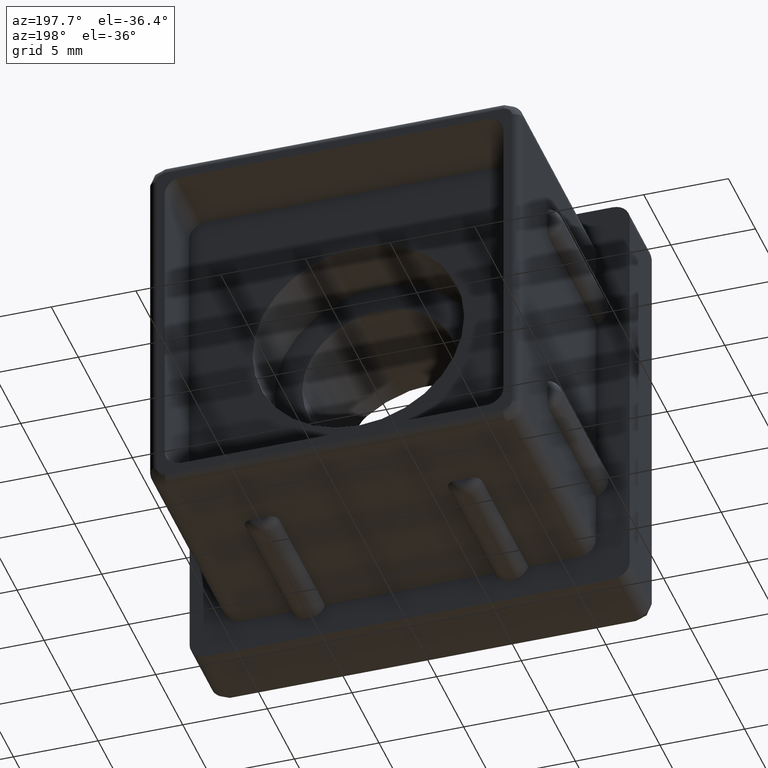
[diagram: clean part render]
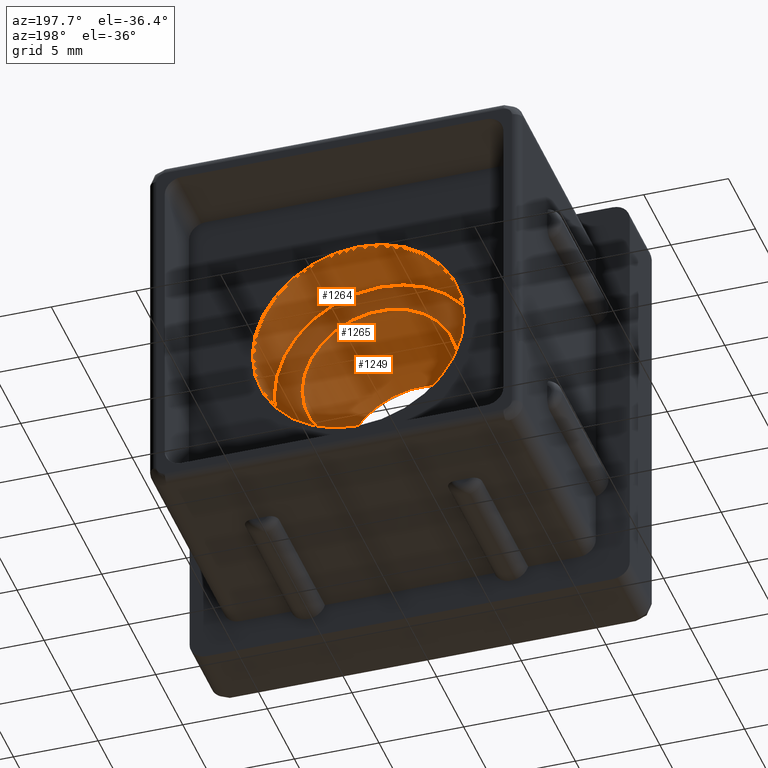
[diagram: same view with one multi-face feature highlighted, each face labeled with its STEP entity id]
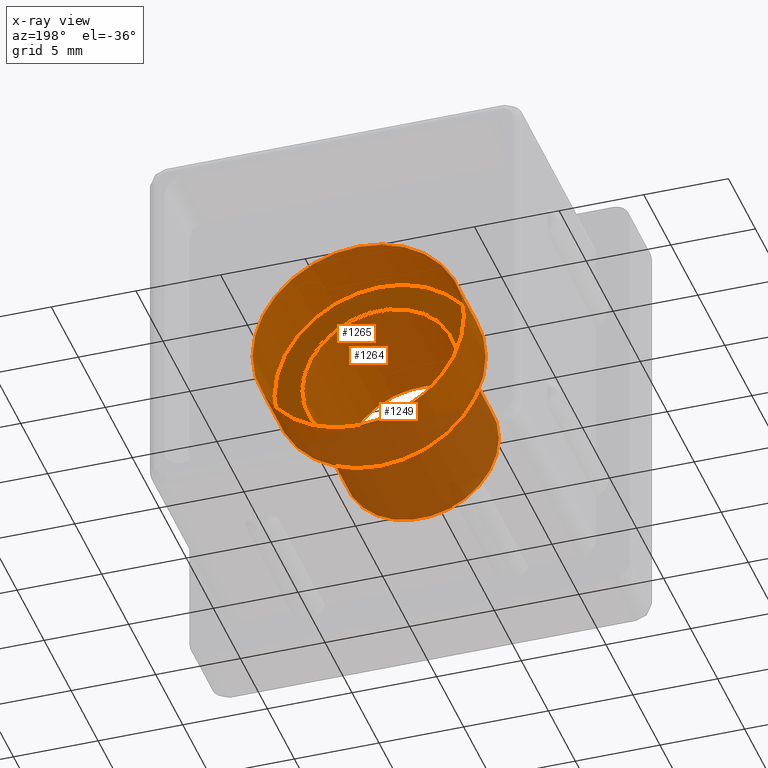
[diagram: x-ray of the same camera — body ghosted, the whole feature saturated]
A machine part, auxiliary view. The highlighted faces form ONE feature: a stepped (counterbored) hole: 2 coaxial cylindrical walls of radii 4.6 -> 6.25 mm joined by 1 annular planar shoulder face(s). The faces share edges in the B-rep.
The next image is the same camera in x-ray: the body ghosted and the whole hole feature saturated, so the bore chain is visible through the body.
Their STEP definitions:
[1] entity #1264 (Cylinder):
#21=FACE_BOUND('',#415,.T.);
#63=CYLINDRICAL_SURFACE('',#1408,6.25);
#335=FACE_OUTER_BOUND('',#414,.T.);
#414=EDGE_LOOP('',(#1167));
#415=EDGE_LOOP('',(#1168));
#501=CIRCLE('',#1409,6.25);
#502=CIRCLE('',#1410,6.25);
#636=VERTEX_POINT('',#2371);
#637=VERTEX_POINT('',#2373);
#819=EDGE_CURVE('',#636,#636,#501,.T.);
#820=EDGE_CURVE('',#637,#637,#502,.T.);
#1167=ORIENTED_EDGE('',*,*,#819,.F.);
#1168=ORIENTED_EDGE('',*,*,#820,.T.);
#1264=ADVANCED_FACE('',(#335,#21),#63,.F.);
#1408=AXIS2_PLACEMENT_3D('',#2370,#1779,#1780);
#1409=AXIS2_PLACEMENT_3D('',#2372,#1781,#1782);
#1410=AXIS2_PLACEMENT_3D('',#2374,#1783,#1784);
#1779=DIRECTION('center_axis',(0.,-1.,0.));
#1780=DIRECTION('ref_axis',(-1.,0.,0.));
#1781=DIRECTION('center_axis',(0.,-1.,0.));
#1782=DIRECTION('ref_axis',(-1.,0.,0.));
#1783=DIRECTION('center_axis',(0.,-1.,0.));
#1784=DIRECTION('ref_axis',(-1.,0.,0.));
#2370=CARTESIAN_POINT('Origin',(0.,14.,0.));
#2371=CARTESIAN_POINT('',(6.25,9.5,7.65404249467096E-16));
#2372=CARTESIAN_POINT('Origin',(0.,9.5,0.));
#2373=CARTESIAN_POINT('',(6.25,5.5,-7.65404249467096E-16));
#2374=CARTESIAN_POINT('Origin',(0.,5.5,0.));
[2] entity #1249 (Cylinder):
#19=FACE_BOUND('',#398,.T.);
#54=CYLINDRICAL_SURFACE('',#1384,4.6);
#320=FACE_OUTER_BOUND('',#397,.T.);
#397=EDGE_LOOP('',(#1081));
#398=EDGE_LOOP('',(#1082));
#491=CIRCLE('',#1383,4.6);
#492=CIRCLE('',#1385,4.6);
#623=VERTEX_POINT('',#2315);
#624=VERTEX_POINT('',#2318);
#792=EDGE_CURVE('',#623,#623,#491,.T.);
#793=EDGE_CURVE('',#624,#624,#492,.T.);
#1081=ORIENTED_EDGE('',*,*,#793,.F.);
#1082=ORIENTED_EDGE('',*,*,#792,.T.);
#1249=ADVANCED_FACE('',(#320,#19),#54,.F.);
#1383=AXIS2_PLACEMENT_3D('',#2316,#1712,#1713);
#1384=AXIS2_PLACEMENT_3D('',#2317,#1714,#1715);
#1385=AXIS2_PLACEMENT_3D('',#2319,#1716,#1717);
#1712=DIRECTION('center_axis',(0.,-1.,0.));
#1713=DIRECTION('ref_axis',(1.,0.,0.));
#1714=DIRECTION('center_axis',(0.,-1.,0.));
#1715=DIRECTION('ref_axis',(1.,0.,0.));
#1716=DIRECTION('center_axis',(0.,-1.,0.));
#1717=DIRECTION('ref_axis',(1.,0.,0.));
#2315=CARTESIAN_POINT('',(4.6,-2.1,0.));
#2316=CARTESIAN_POINT('Origin',(0.,-2.1,0.));
#2317=CARTESIAN_POINT('Origin',(0.,38.6612682020367,0.));
#2318=CARTESIAN_POINT('',(-4.6,5.5,-5.63337527607783E-16));
#2319=CARTESIAN_POINT('Origin',(0.,5.5,0.));
[3] entity #1265 (Plane):
#22=FACE_BOUND('',#417,.T.);
#263=PLANE('',#1411);
#336=FACE_OUTER_BOUND('',#416,.T.);
#416=EDGE_LOOP('',(#1169));
#417=EDGE_LOOP('',(#1170));
#492=CIRCLE('',#1385,4.6);
#502=CIRCLE('',#1410,6.25);
#624=VERTEX_POINT('',#2318);
#637=VERTEX_POINT('',#2373);
#793=EDGE_CURVE('',#624,#624,#492,.T.);
#820=EDGE_CURVE('',#637,#637,#502,.T.);
#1169=ORIENTED_EDGE('',*,*,#820,.F.);
#1170=ORIENTED_EDGE('',*,*,#793,.T.);
#1265=ADVANCED_FACE('',(#336,#22),#263,.T.);
#1385=AXIS2_PLACEMENT_3D('',#2319,#1716,#1717);
#1410=AXIS2_PLACEMENT_3D('',#2374,#1783,#1784);
#1411=AXIS2_PLACEMENT_3D('',#2375,#1785,#1786);
#1716=DIRECTION('center_axis',(0.,-1.,0.));
#1717=DIRECTION('ref_axis',(1.,0.,0.));
#1783=DIRECTION('center_axis',(0.,-1.,0.));
#1784=DIRECTION('ref_axis',(-1.,0.,0.));
#1785=DIRECTION('center_axis',(0.,1.,0.));
#1786=DIRECTION('ref_axis',(0.,0.,1.));
#2318=CARTESIAN_POINT('',(-4.6,5.5,-5.63337527607783E-16));
#2319=CARTESIAN_POINT('Origin',(0.,5.5,0.));
#2373=CARTESIAN_POINT('',(6.25,5.5,-7.65404249467096E-16));
#2374=CARTESIAN_POINT('Origin',(0.,5.5,0.));
#2375=CARTESIAN_POINT('Origin',(-3.59843160688966E-16,5.5,1.48029736616688E-16));